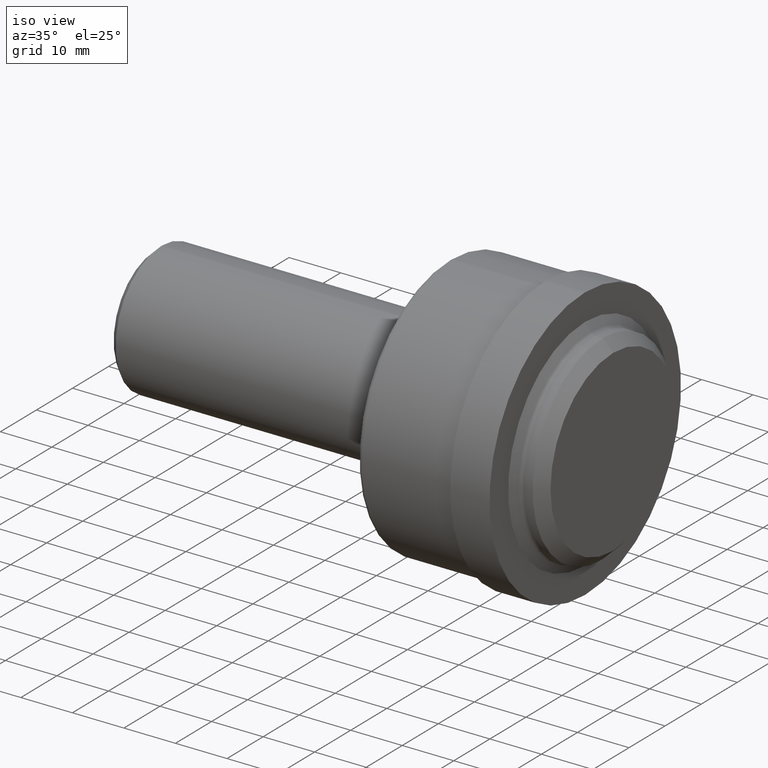
[diagram: clean part render]
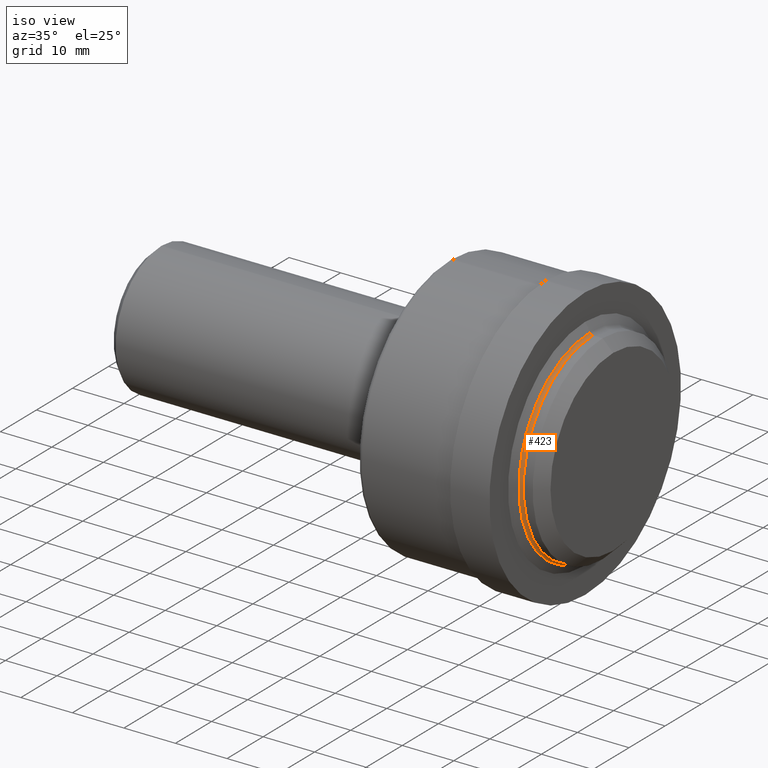
[diagram: same view with one face highlighted and labeled with its STEP entity id]
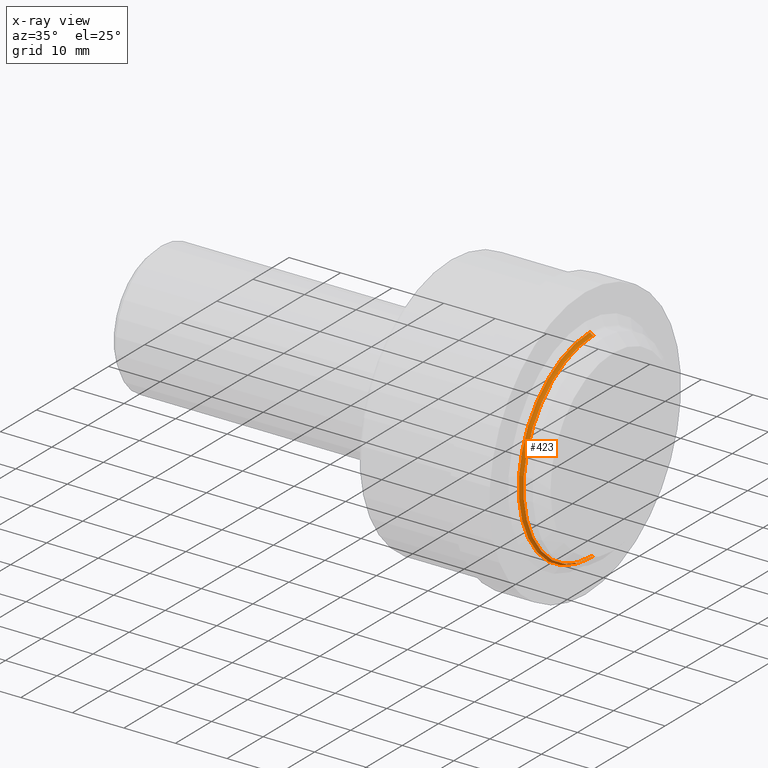
[diagram: x-ray of the same camera — body ghosted, the highlighted face saturated]
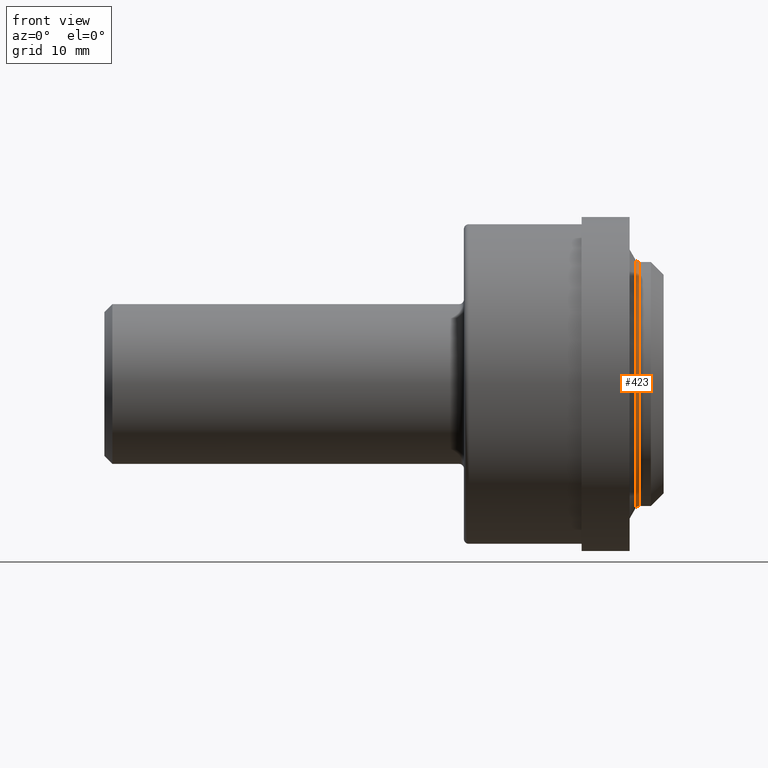
[diagram: same view with one face highlighted and labeled with its STEP entity id]
A machine part, iso view. The second image highlights one B-rep face of the part: STEP entity #423.
The next image is the same camera in x-ray: the body ghosted, the highlighted face saturated — about 0% of this face is hidden behind the body in this view.
A second angle (front view) of the same face is appended — the face is thin or edge-on in the first view.
In plain terms, the highlighted toroidal blend (fillet) surface has major radius 20.1193 mm and minor (blend) radius 0.7366 mm.
Its self-contained STEP definition (entity closure, byte-faithful):
#12 = ORIENTED_EDGE ( 'NONE', *, *, #138, .T. ) ;
#29 = ORIENTED_EDGE ( 'NONE', *, *, #699, .F. ) ;
#57 = DIRECTION ( 'NONE',  ( 0.000000000000000000, 0.000000000000000000, 1.000000000000000000 ) ) ;
#68 = CARTESIAN_POINT ( 'NONE',  ( 3.349007418910965317, 9.345279724293448517E-17, -0.7630999999999995564 ) ) ;
#95 = DIRECTION ( 'NONE',  ( 0.000000000000000000, 0.000000000000000000, 1.000000000000000000 ) ) ;
#109 = DIRECTION ( 'NONE',  ( -1.000000000000000000, -0.000000000000000000, -0.000000000000000000 ) ) ;
#120 = DIRECTION ( 'NONE',  ( 0.000000000000000000, 0.000000000000000000, -1.000000000000000000 ) ) ;
#126 = AXIS2_PLACEMENT_3D ( 'NONE', #517, #378, #95 ) ;
#133 = DIRECTION ( 'NONE',  ( 0.000000000000000000, -1.000000000000000000, 0.000000000000000000 ) ) ;
#138 = EDGE_CURVE ( 'NONE', #360, #379, #145, .T. ) ;
#145 = CIRCLE ( 'NONE', #660, 0.02900000000000042821 ) ;
#164 = CARTESIAN_POINT ( 'NONE',  ( 3.349007418910966649, 9.700427296046183859E-17, -0.7921000000000000263 ) ) ;
#165 = AXIS2_PLACEMENT_3D ( 'NONE', #446, #133, #120 ) ;
#174 = VERTEX_POINT ( 'NONE', #711 ) ;
#188 = CARTESIAN_POINT ( 'NONE',  ( 3.323892682201216697, 9.522853510169822351E-17, -0.7776000000000002910 ) ) ;
#218 = TOROIDAL_SURFACE ( 'NONE', #126, 0.7921000000000000263, 0.02900000000000045944 ) ;
#244 = ORIENTED_EDGE ( 'NONE', *, *, #377, .F. ) ;
#251 = AXIS2_PLACEMENT_3D ( 'NONE', #451, #619, #57 ) ;
#284 = EDGE_LOOP ( 'NONE', ( #29, #12, #299, #244 ) ) ;
#292 = CARTESIAN_POINT ( 'NONE',  ( 3.349007418910965317, 0.000000000000000000, 0.7630999999999995564 ) ) ;
#299 = ORIENTED_EDGE ( 'NONE', *, *, #600, .T. ) ;
#300 = VERTEX_POINT ( 'NONE', #292 ) ;
#336 = DIRECTION ( 'NONE',  ( 0.000000000000000000, -1.224646799147355672E-16, 1.000000000000000000 ) ) ;
#350 = AXIS2_PLACEMENT_3D ( 'NONE', #601, #109, #707 ) ;
#360 = VERTEX_POINT ( 'NONE', #188 ) ;
#377 = EDGE_CURVE ( 'NONE', #174, #300, #438, .T. ) ;
#378 = DIRECTION ( 'NONE',  ( -1.000000000000000000, -0.000000000000000000, -0.000000000000000000 ) ) ;
#379 = VERTEX_POINT ( 'NONE', #68 ) ;
#423 = ADVANCED_FACE ( 'NONE', ( #677 ), #218, .F. ) ;
#438 = CIRCLE ( 'NONE', #165, 0.02900000000000042821 ) ;
#446 = CARTESIAN_POINT ( 'NONE',  ( 3.349007418910966649, 0.000000000000000000, 0.7921000000000000263 ) ) ;
#451 = CARTESIAN_POINT ( 'NONE',  ( 3.323892682201216697, 0.000000000000000000, 0.000000000000000000 ) ) ;
#517 = CARTESIAN_POINT ( 'NONE',  ( 3.349007418910966649, 0.000000000000000000, 0.000000000000000000 ) ) ;
#600 = EDGE_CURVE ( 'NONE', #379, #300, #670, .T. ) ;
#601 = CARTESIAN_POINT ( 'NONE',  ( 3.349007418910965317, 0.000000000000000000, 0.000000000000000000 ) ) ;
#602 = DIRECTION ( 'NONE',  ( -0.000000000000000000, 1.000000000000000000, 1.224646799147353207E-16 ) ) ;
#619 = DIRECTION ( 'NONE',  ( -1.000000000000000000, -0.000000000000000000, -0.000000000000000000 ) ) ;
#660 = AXIS2_PLACEMENT_3D ( 'NONE', #164, #602, #336 ) ;
#670 = CIRCLE ( 'NONE', #350, 0.7630999999999995564 ) ;
#677 = FACE_OUTER_BOUND ( 'NONE', #284, .T. ) ;
#690 = CIRCLE ( 'NONE', #251, 0.7775999999999999579 ) ;
#699 = EDGE_CURVE ( 'NONE', #360, #174, #690, .T. ) ;
#707 = DIRECTION ( 'NONE',  ( 0.000000000000000000, 0.000000000000000000, 1.000000000000000000 ) ) ;
#711 = CARTESIAN_POINT ( 'NONE',  ( 3.323892682201216697, 0.000000000000000000, 0.7776000000000002910 ) ) ;